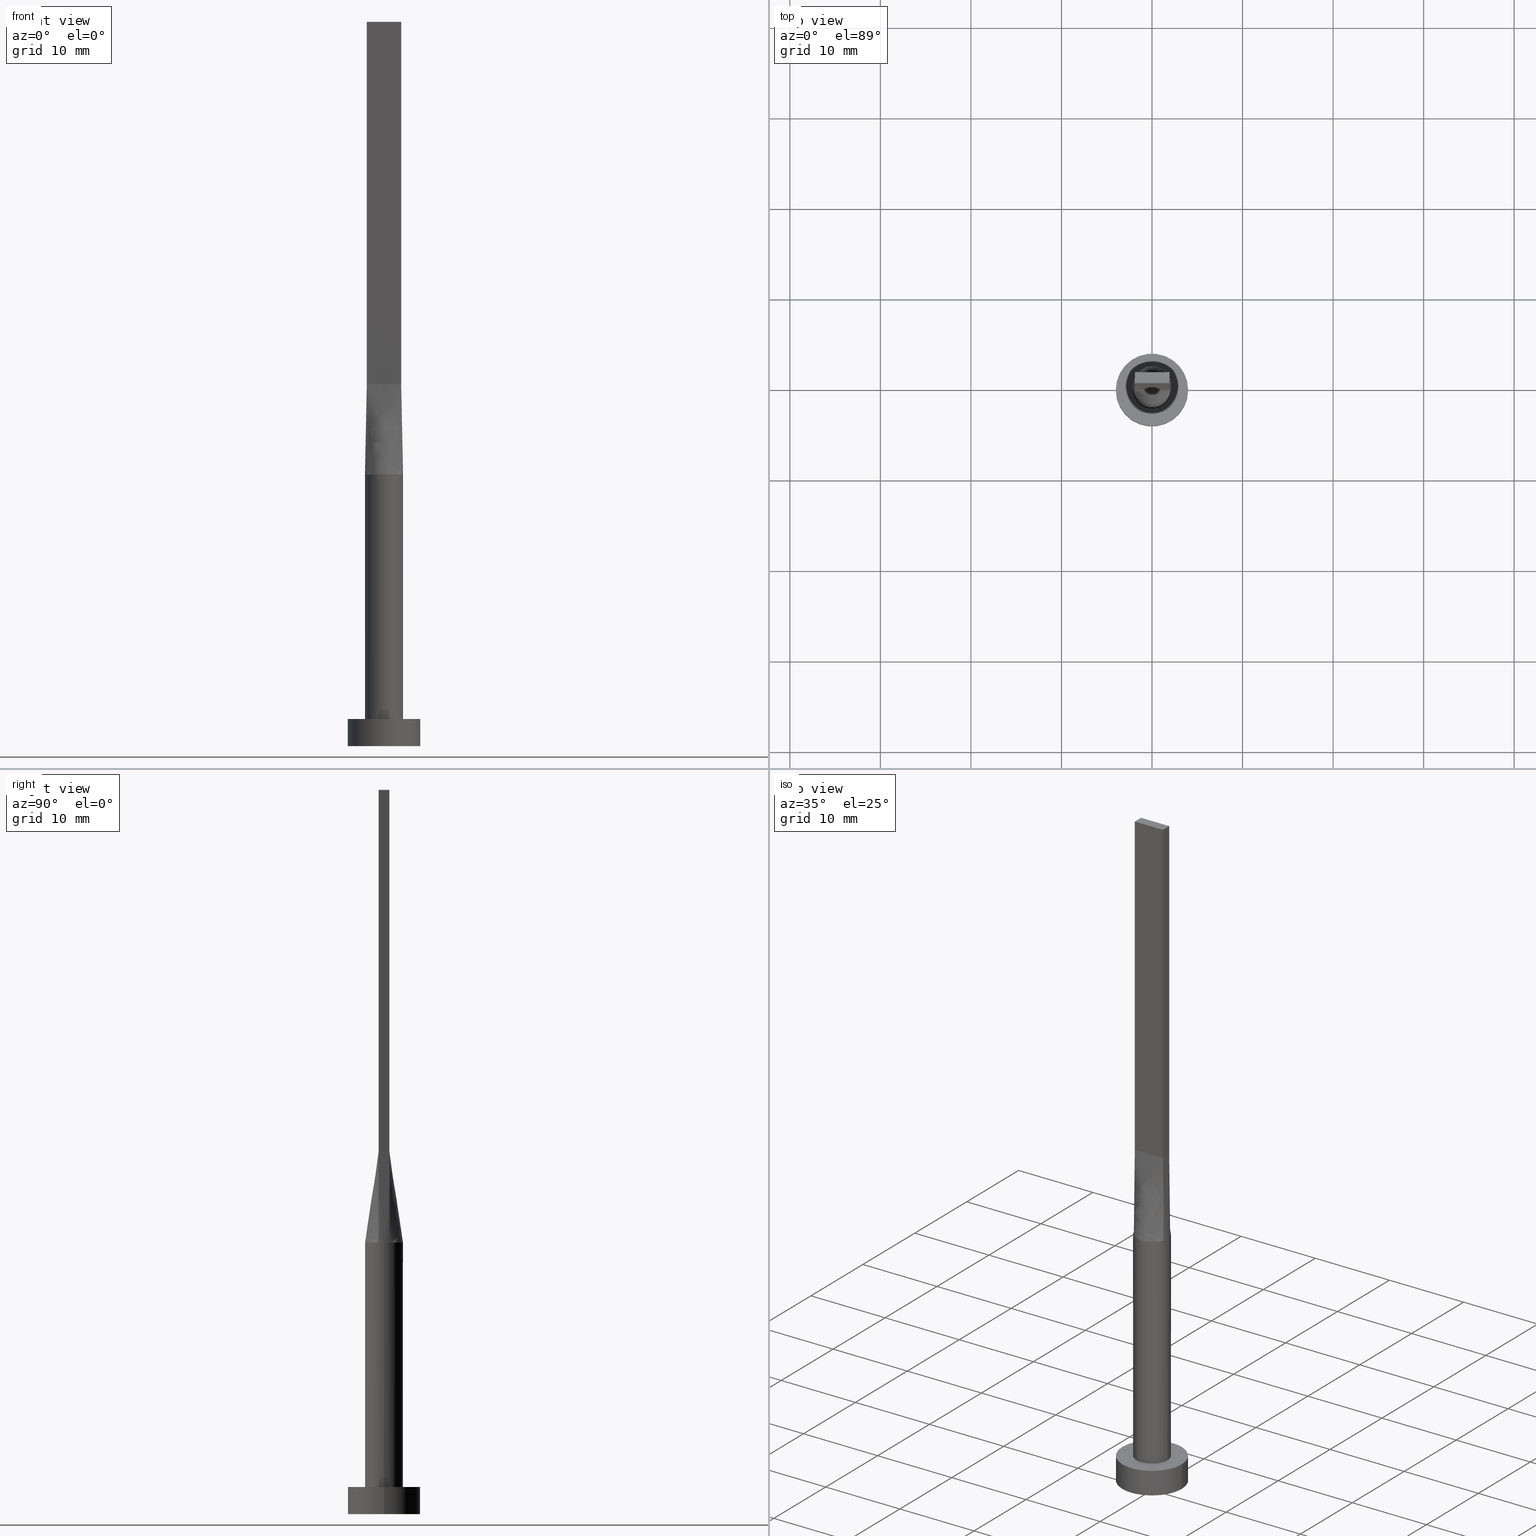
[diagram: canonical four-view strip — front | top / right | iso, engineering-drawing reading convention]
A machine part, canonical four-view strip (front | top / right | iso — engineering-drawing reading convention). The complete STEP part file that produces these views, byte-faithful:
ISO-10303-21;
HEADER;
FILE_DESCRIPTION (( 'STEP AP203' ),
    '1' );
FILE_NAME ('9bb8.STEP',
    '2023-02-13T11:24:46',
    ( '' ),
    ( '' ),
    'SwSTEP 2.0',
    'SolidWorks 2019',
    '' );
FILE_SCHEMA (( 'CONFIG_CONTROL_DESIGN' ));
ENDSEC;

DATA;
#1 = CARTESIAN_POINT ( 'NONE',  ( 1.951261798390848901, 0.6161879363339524129, 35.00000000000000000 ) ) ;
#2 = CARTESIAN_POINT ( 'NONE',  ( -1.741666666666666696, 0.6000000000000000888, 39.99999999999999289 ) ) ;
#3 = CARTESIAN_POINT ( 'NONE',  ( 0.000000000000000000, 0.000000000000000000, 30.00000000000000000 ) ) ;
#4 = AXIS2_PLACEMENT_3D ( 'NONE', #367, #493, #276 ) ;
#5 = CARTESIAN_POINT ( 'NONE',  ( 0.000000000000000000, 0.000000000000000000, 30.00000000000000000 ) ) ;
#6 = VERTEX_POINT ( 'NONE', #305 ) ;
#7 = CARTESIAN_POINT ( 'NONE',  ( -0.1583333333333370174, -0.5999999999999995337, 39.99999999999999289 ) ) ;
#8 = DIRECTION ( 'NONE',  ( -1.000000000000000000, 0.000000000000000000, 0.000000000000000000 ) ) ;
#9 = CYLINDRICAL_SURFACE ( 'NONE', #532, 2.100000000000000089 ) ;
#10 = ORIENTED_EDGE ( 'NONE', *, *, #257, .F. ) ;
#11 = PLANE ( 'NONE',  #62 ) ;
#12 = CARTESIAN_POINT ( 'NONE',  ( -1.899999999999999911, -0.5999999999999995337, 80.00000000000000000 ) ) ;
#13 = PLANE ( 'NONE',  #99 ) ;
#14 = FACE_OUTER_BOUND ( 'NONE', #278, .T. ) ;
#15 = VECTOR ( 'NONE', #430, 1000.000000000000000 ) ;
#16 = PERSON_AND_ORGANIZATION ( #572, #200 ) ;
#17 = DIRECTION ( 'NONE',  ( -0.000000000000000000, -0.000000000000000000, -1.000000000000000000 ) ) ;
#18 = DIRECTION ( 'NONE',  ( 1.807003620809174632E-16, 1.000000000000000000, 0.000000000000000000 ) ) ;
#19 = ORIENTED_EDGE ( 'NONE', *, *, #204, .T. ) ;
#20 = PERSON_AND_ORGANIZATION_ROLE ( 'design_owner' ) ;
#21 = EDGE_CURVE ( 'NONE', #109, #374, #120, .T. ) ;
#22 = CARTESIAN_POINT ( 'NONE',  ( -0.1583333333333350745, 0.6000000000000000888, 39.99999999999999289 ) ) ;
#23 = CARTESIAN_POINT ( 'NONE',  ( 2.100000000000000089, 2.571758278209441957E-16, 3.000000000000000000 ) ) ;
#24 = SHAPE_DEFINITION_REPRESENTATION ( #216, #262 ) ;
#25 = CARTESIAN_POINT ( 'NONE',  ( -1.667357759214464830, 1.291791096182927534, 30.00000000000000355 ) ) ;
#26 = CARTESIAN_POINT ( 'NONE',  ( 1.899999999999999023, -0.5999999999999997558, 40.00000000000000000 ) ) ;
#27 = DIRECTION ( 'NONE',  ( 1.000000000000000000, 0.000000000000000000, -0.000000000000000000 ) ) ;
#28 = EDGE_CURVE ( 'NONE', #198, #228, #481, .T. ) ;
#29 = CARTESIAN_POINT ( 'NONE',  ( 0.9765948449220478444, 1.875594675604967065, 29.99999999999999645 ) ) ;
#30 = DIRECTION ( 'NONE',  ( 0.000000000000000000, 0.000000000000000000, 1.000000000000000000 ) ) ;
#31 = CARTESIAN_POINT ( 'NONE',  ( 1.108333333333332504, 0.6000000000000000888, 39.99999999999999289 ) ) ;
#32 = AXIS2_PLACEMENT_3D ( 'NONE', #410, #280, #337 ) ;
#33 = CARTESIAN_POINT ( 'NONE',  ( 1.899999999999999689, 0.6000000000000001998, 40.00000000000000000 ) ) ;
#34 = VERTEX_POINT ( 'NONE', #210 ) ;
#35 = CARTESIAN_POINT ( 'NONE',  ( 1.266666666666665941, 0.6000000000000000888, 39.99999999999999289 ) ) ;
#36 = ORIENTED_EDGE ( 'NONE', *, *, #405, .F. ) ;
#37 = ADVANCED_FACE ( 'NONE', ( #38 ), #348, .F. ) ;
#38 = FACE_OUTER_BOUND ( 'NONE', #502, .T. ) ;
#39 = CIRCLE ( 'NONE', #397, 4.000000000000000000 ) ;
#40 = LOCAL_TIME ( 12, 24, 46.00000000000000000, #370 ) ;
#41 = CARTESIAN_POINT ( 'NONE',  ( 2.099999999999999645, -0.2158003972066312171, 29.99999999999999289 ) ) ;
#42 = DIRECTION ( 'NONE',  ( 1.000000000000000000, 0.000000000000000000, 0.000000000000000000 ) ) ;
#43 = CARTESIAN_POINT ( 'NONE',  ( 0.000000000000000000, 0.000000000000000000, 3.000000000000000000 ) ) ;
#44 = ORIENTED_EDGE ( 'NONE', *, *, #83, .T. ) ;
#45 = ADVANCED_FACE ( 'NONE', ( #536, #255 ), #387, .T. ) ;
#46 = CARTESIAN_POINT ( 'NONE',  ( 1.878511276496548366, -0.9591670956957810690, 30.00000000000001066 ) ) ;
#47 = CARTESIAN_POINT ( 'NONE',  ( 0.000000000000000000, 0.000000000000000000, 30.00000000000000000 ) ) ;
#48 = CARTESIAN_POINT ( 'NONE',  ( 2.002626276893244128, -0.6324088233005202841, 30.00000000000000000 ) ) ;
#49 = VERTEX_POINT ( 'NONE', #118 ) ;
#50 = CC_DESIGN_DATE_AND_TIME_ASSIGNMENT ( #450, #524, ( #385 ) ) ;
#51 = CARTESIAN_POINT ( 'NONE',  ( -4.000000000000000000, 0.000000000000000000, 3.000000000000000000 ) ) ;
#52 = CIRCLE ( 'NONE', #375, 4.000000000000000000 ) ;
#53 = ORIENTED_EDGE ( 'NONE', *, *, #359, .T. ) ;
#54 = EDGE_CURVE ( 'NONE', #188, #34, #209, .T. ) ;
#55 = CARTESIAN_POINT ( 'NONE',  ( 1.899999999999999689, 0.6000000000000001998, 40.00000000000000000 ) ) ;
#56 = ORIENTED_EDGE ( 'NONE', *, *, #184, .F. ) ;
#57 = DIRECTION ( 'NONE',  ( -1.807003620809174632E-16, -1.000000000000000000, 0.000000000000000000 ) ) ;
#58 = FACE_OUTER_BOUND ( 'NONE', #136, .T. ) ;
#59 = APPROVAL ( #233, 'NEUR�EN�' ) ;
#60 = ORIENTED_EDGE ( 'NONE', *, *, #267, .T. ) ;
#61 = APPROVAL_DATE_TIME ( #402, #59 ) ;
#62 = AXIS2_PLACEMENT_3D ( 'NONE', #97, #506, #369 ) ;
#63 = CARTESIAN_POINT ( 'NONE',  ( -1.951261798390848901, 0.6161879363339521909, 35.00000000000000000 ) ) ;
#64 = VERTEX_POINT ( 'NONE', #48 ) ;
#65 =( LENGTH_UNIT ( ) NAMED_UNIT ( * ) SI_UNIT ( .MILLI., .METRE. ) );
#66 = EDGE_CURVE ( 'NONE', #215, #109, #365, .T. ) ;
#67 = CARTESIAN_POINT ( 'NONE',  ( -2.100000000000000089, -0.2158003972066306064, 30.00000000000000000 ) ) ;
#68 = ORIENTED_EDGE ( 'NONE', *, *, #193, .F. ) ;
#69 = APPROVAL_ROLE ( '' ) ;
#70 = LINE ( 'NONE', #250, #444 ) ;
#71 = VECTOR ( 'NONE', #544, 1000.000000000000000 ) ;
#72 = VECTOR ( 'NONE', #146, 1000.000000000000000 ) ;
#73 = COORDINATED_UNIVERSAL_TIME_OFFSET ( 1, 0, .AHEAD. ) ;
#74 = CARTESIAN_POINT ( 'NONE',  ( -1.529462611013499451, 1.456669187245239527, 29.99999999999999645 ) ) ;
#75 = ADVANCED_FACE ( 'NONE', ( #332 ), #9, .T. ) ;
#76 = APPROVAL_STATUS ( 'not_yet_approved' ) ;
#77 = CARTESIAN_POINT ( 'NONE',  ( 1.529462611013499451, 1.456669187245239527, 29.99999999999999645 ) ) ;
#78 = CARTESIAN_POINT ( 'NONE',  ( -2.002622288503867587, 0.6324075186587619912, 30.00000000000000000 ) ) ;
#79 = DATE_AND_TIME ( #112, #123 ) ;
#80 = CARTESIAN_POINT ( 'NONE',  ( -1.899999999999999911, -0.5999999999999995337, 40.00000000000000000 ) ) ;
#81 = CLOSED_SHELL ( 'NONE', ( #75, #436, #196, #45, #526, #321, #454, #121, #152, #447, #381, #496, #341, #37, #139 ) ) ;
#82 = ORIENTED_EDGE ( 'NONE', *, *, #504, .F. ) ;
#83 = EDGE_CURVE ( 'NONE', #64, #271, #565, .T. ) ;
#84 = CARTESIAN_POINT ( 'NONE',  ( -2.100000000000000089, 0.000000000000000000, 30.00000000000000000 ) ) ;
#85 = CARTESIAN_POINT ( 'NONE',  ( -1.952271707612931895, -0.7915068550356626487, 30.00000000000000000 ) ) ;
#86 = CARTESIAN_POINT ( 'NONE',  ( -1.899999999999999689, 0.6000000000000001998, 80.00000000000000000 ) ) ;
#87 = AXIS2_PLACEMENT_3D ( 'NONE', #411, #17, #194 ) ;
#88 = CARTESIAN_POINT ( 'NONE',  ( 0.000000000000000000, 0.000000000000000000, 30.00000000000000000 ) ) ;
#89 = EDGE_CURVE ( 'NONE', #178, #326, #455, .T. ) ;
#90 = ORIENTED_EDGE ( 'NONE', *, *, #230, .T. ) ;
#91 = DIRECTION ( 'NONE',  ( -0.000000000000000000, -0.000000000000000000, -1.000000000000000000 ) ) ;
#92 = ORIENTED_EDGE ( 'NONE', *, *, #171, .F. ) ;
#93 = CARTESIAN_POINT ( 'NONE',  ( -2.002523596781697890, 0.6323758726679044040, 30.00000000000000000 ) ) ;
#94 = CARTESIAN_POINT ( 'NONE',  ( -0.5124799074986362557, 2.051574327850739454, 30.00000000000000711 ) ) ;
#95 = CARTESIAN_POINT ( 'NONE',  ( 1.899999999999999467, 0.2000000000000001499, 39.99999999999999289 ) ) ;
#96 = ORIENTED_EDGE ( 'NONE', *, *, #345, .T. ) ;
#97 = CARTESIAN_POINT ( 'NONE',  ( 0.000000000000000000, 0.000000000000000000, 0.000000000000000000 ) ) ;
#98 = FACE_OUTER_BOUND ( 'NONE', #154, .T. ) ;
#99 = AXIS2_PLACEMENT_3D ( 'NONE', #187, #408, #335 ) ;
#100 = CARTESIAN_POINT ( 'NONE',  ( -1.899999999999999689, 0.6000000000000001998, 80.00000000000000000 ) ) ;
#101 = EDGE_CURVE ( 'NONE', #491, #374, #498, .T. ) ;
#102 = CARTESIAN_POINT ( 'NONE',  ( 1.899999999999999689, 0.6000000000000001998, 40.00000000000000000 ) ) ;
#103 = CARTESIAN_POINT ( 'NONE',  ( -2.099999999999999645, 0.2158003972066311338, 29.99999999999999289 ) ) ;
#104 = EDGE_LOOP ( 'NONE', ( #380, #245, #423, #53 ) ) ;
#105 = CARTESIAN_POINT ( 'NONE',  ( 0.000000000000000000, 0.000000000000000000, 0.000000000000000000 ) ) ;
#106 = CARTESIAN_POINT ( 'NONE',  ( -1.899999999999999689, -0.2000000000000034250, 39.99999999999999289 ) ) ;
#107 = CALENDAR_DATE ( 2023, 13, 2 ) ;
#108 = VECTOR ( 'NONE', #8, 1000.000000000000000 ) ;
#109 = VERTEX_POINT ( 'NONE', #448 ) ;
#110 = EDGE_LOOP ( 'NONE', ( #273, #60, #263, #449 ) ) ;
#111 = APPROVAL ( #570, 'NEUR�EN�' ) ;
#112 = CALENDAR_DATE ( 2023, 13, 2 ) ;
#113 = CARTESIAN_POINT ( 'NONE',  ( -1.899999999999999911, -0.5999999999999995337, 80.00000000000000000 ) ) ;
#114 = CARTESIAN_POINT ( 'NONE',  ( 1.952271707612931895, 0.7915068550356627597, 30.00000000000000355 ) ) ;
#115 = CARTESIAN_POINT ( 'NONE',  ( 1.899999999999999689, 0.6000000000000001998, 40.00000000000000000 ) ) ;
#116 = APPLICATION_CONTEXT ( 'configuration controlled 3d designs of mechanical parts and assemblies' ) ;
#117 = ORIENTED_EDGE ( 'NONE', *, *, #101, .T. ) ;
#118 = CARTESIAN_POINT ( 'NONE',  ( -4.000000000000000000, 0.000000000000000000, 3.000000000000000000 ) ) ;
#119 = LINE ( 'NONE', #84, #338 ) ;
#120 = LINE ( 'NONE', #485, #299 ) ;
#121 = ADVANCED_FACE ( 'NONE', ( #177 ), #471, .T. ) ;
#122 = CIRCLE ( 'NONE', #467, 2.100000000000000089 ) ;
#123 = LOCAL_TIME ( 12, 24, 46.00000000000000000, #73 ) ;
#124 = ORIENTED_EDGE ( 'NONE', *, *, #237, .T. ) ;
#125 = CARTESIAN_POINT ( 'NONE',  ( -0.6333333333333361903, -0.5999999999999994227, 39.99999999999999289 ) ) ;
#126 = DIRECTION ( 'NONE',  ( -0.000000000000000000, -0.000000000000000000, -1.000000000000000000 ) ) ;
#127 = CARTESIAN_POINT ( 'NONE',  ( 0.7916666666666634100, -0.5999999999999996447, 39.99999999999999289 ) ) ;
#128 = EDGE_CURVE ( 'NONE', #326, #178, #122, .T. ) ;
#129 = CARTESIAN_POINT ( 'NONE',  ( 1.184262492297964098, 1.748903470433445628, 29.99999999999999289 ) ) ;
#130 = ORIENTED_EDGE ( 'NONE', *, *, #552, .F. ) ;
#131 = VECTOR ( 'NONE', #235, 1000.000000000000000 ) ;
#132 = ORIENTED_EDGE ( 'NONE', *, *, #311, .F. ) ;
#133 = CARTESIAN_POINT ( 'NONE',  ( -1.108333333333335169, -0.5999999999999994227, 39.99999999999999289 ) ) ;
#134 = CARTESIAN_POINT ( 'NONE',  ( -1.184262492297963876, 1.748903470433446294, 30.00000000000000000 ) ) ;
#135 = DIRECTION ( 'NONE',  ( 0.000000000000000000, 0.000000000000000000, 1.000000000000000000 ) ) ;
#136 = EDGE_LOOP ( 'NONE', ( #527, #354, #368, #442 ) ) ;
#137 = CARTESIAN_POINT ( 'NONE',  ( -1.899999999999999689, 0.6000000000000001998, 80.00000000000000000 ) ) ;
#138 = ORIENTED_EDGE ( 'NONE', *, *, #218, .F. ) ;
#139 = ADVANCED_FACE ( 'NONE', ( #361 ), #13, .T. ) ;
#140 = AXIS2_PLACEMENT_3D ( 'NONE', #88, #169, #324 ) ;
#141 = CARTESIAN_POINT ( 'NONE',  ( 2.002523596781697890, -0.6323758726679050701, 30.00000000000000000 ) ) ;
#142 = CARTESIAN_POINT ( 'NONE',  ( -1.899999999999999689, 0.6000000000000001998, 40.00000000000000000 ) ) ;
#143 = DIRECTION ( 'NONE',  ( 0.000000000000000000, 0.000000000000000000, 1.000000000000000000 ) ) ;
#144 = APPROVAL_ROLE ( '' ) ;
#145 = LINE ( 'NONE', #63, #249 ) ;
#146 = DIRECTION ( 'NONE',  ( -0.000000000000000000, -0.000000000000000000, -1.000000000000000000 ) ) ;
#147 = AXIS2_PLACEMENT_3D ( 'NONE', #478, #428, #562 ) ;
#148 = CARTESIAN_POINT ( 'NONE',  ( -2.002523596781697890, 0.6323758726679048481, 30.00000000000000000 ) ) ;
#149 = LOCAL_TIME ( 12, 24, 46.00000000000000000, #501 ) ;
#150 = ORIENTED_EDGE ( 'NONE', *, *, #128, .T. ) ;
#151 = DIRECTION ( 'NONE',  ( -1.807003620809174632E-16, -1.000000000000000000, 0.000000000000000000 ) ) ;
#152 = ADVANCED_FACE ( 'NONE', ( #197 ), #297, .T. ) ;
#153 = CARTESIAN_POINT ( 'NONE',  ( -2.065999667310664645, 0.4313683159928417554, 29.99999999999999645 ) ) ;
#154 = EDGE_LOOP ( 'NONE', ( #384, #285, #523, #519, #541, #150 ) ) ;
#155 = CALENDAR_DATE ( 2023, 13, 2 ) ;
#156 = CC_DESIGN_PERSON_AND_ORGANIZATION_ASSIGNMENT ( #446, #20, ( #264 ) ) ;
#157 = CARTESIAN_POINT ( 'NONE',  ( -1.878511276496549032, 0.9591670956957809580, 30.00000000000001066 ) ) ;
#158 = CARTESIAN_POINT ( 'NONE',  ( 1.667357759214464608, 1.291791096182927090, 30.00000000000001066 ) ) ;
#159 = EDGE_LOOP ( 'NONE', ( #44, #166, #117, #138, #463 ) ) ;
#160 = PERSON_AND_ORGANIZATION_ROLE ( 'classification_officer' ) ;
#161 = ORIENTED_EDGE ( 'NONE', *, *, #21, .F. ) ;
#162 = PERSON_AND_ORGANIZATION ( #572, #200 ) ;
#163 = CARTESIAN_POINT ( 'NONE',  ( 0.6333333333333320825, 0.6000000000000000888, 39.99999999999999289 ) ) ;
#164 = DIRECTION ( 'NONE',  ( -1.807003620809174139E-16, 1.000000000000000000, -0.000000000000000000 ) ) ;
#165 = EDGE_CURVE ( 'NONE', #394, #215, #294, .T. ) ;
#166 = ORIENTED_EDGE ( 'NONE', *, *, #193, .T. ) ;
#167 = DATE_TIME_ROLE ( 'classification_date' ) ;
#168 = FACE_OUTER_BOUND ( 'NONE', #363, .T. ) ;
#169 = DIRECTION ( 'NONE',  ( 0.000000000000000000, 0.000000000000000000, 1.000000000000000000 ) ) ;
#170 = DIRECTION ( 'NONE',  ( -5.421010862427522170E-16, -1.000000000000000000, 0.000000000000000000 ) ) ;
#171 = EDGE_CURVE ( 'NONE', #374, #328, #70, .T. ) ;
#172 = CARTESIAN_POINT ( 'NONE',  ( 0.6333333333333299731, -0.5999999999999996447, 39.99999999999999289 ) ) ;
#173 = CARTESIAN_POINT ( 'NONE',  ( 2.100000000000000089, 3.372022381799045987E-17, 30.00000000000000000 ) ) ;
#174 = DIRECTION ( 'NONE',  ( -0.000000000000000000, -0.000000000000000000, -1.000000000000000000 ) ) ;
#175 = ORIENTED_EDGE ( 'NONE', *, *, #274, .F. ) ;
#176 = CARTESIAN_POINT ( 'NONE',  ( 1.266666666666664165, -0.5999999999999996447, 39.99999999999999289 ) ) ;
#177 = FACE_OUTER_BOUND ( 'NONE', #159, .T. ) ;
#178 = VERTEX_POINT ( 'NONE', #23 ) ;
#179 = AXIS2_PLACEMENT_3D ( 'NONE', #240, #339, #189 ) ;
#180 = CARTESIAN_POINT ( 'NONE',  ( -1.266666666666668162, -0.5999999999999994227, 39.99999999999999289 ) ) ;
#181 = PLANE ( 'NONE',  #4 ) ;
#182 = ORIENTED_EDGE ( 'NONE', *, *, #427, .T. ) ;
#183 = LINE ( 'NONE', #137, #549 ) ;
#184 = EDGE_CURVE ( 'NONE', #198, #34, #203, .T. ) ;
#185 = EDGE_LOOP ( 'NONE', ( #132, #36, #225, #322 ) ) ;
#186 = CARTESIAN_POINT ( 'NONE',  ( -4.000000000000000000, 0.000000000000000000, 0.000000000000000000 ) ) ;
#187 = CARTESIAN_POINT ( 'NONE',  ( 0.000000000000000000, 0.000000000000000000, 80.00000000000000000 ) ) ;
#188 = VERTEX_POINT ( 'NONE', #560 ) ;
#189 = DIRECTION ( 'NONE',  ( 0.000000000000000000, -0.000000000000000000, -1.000000000000000000 ) ) ;
#190 = AXIS2_PLACEMENT_3D ( 'NONE', #5, #135, #393 ) ;
#191 = VERTEX_POINT ( 'NONE', #236 ) ;
#192 = DIRECTION ( 'NONE',  ( 1.000000000000000000, -1.807003620809174632E-16, 0.000000000000000000 ) ) ;
#193 = EDGE_CURVE ( 'NONE', #271, #491, #317, .T. ) ;
#194 = DIRECTION ( 'NONE',  ( -1.000000000000000000, 0.000000000000000000, 0.000000000000000000 ) ) ;
#195 = CARTESIAN_POINT ( 'NONE',  ( 1.952271707612932339, -0.7915068550356634258, 30.00000000000000000 ) ) ;
#196 = ADVANCED_FACE ( 'NONE', ( #287 ), #244, .T. ) ;
#197 = FACE_OUTER_BOUND ( 'NONE', #346, .T. ) ;
#198 = VERTEX_POINT ( 'NONE', #372 ) ;
#199 = FACE_OUTER_BOUND ( 'NONE', #350, .T. ) ;
#200 = ORGANIZATION ( 'NEUR�EN�', 'NEUR�EN�', '' ) ;
#201 = CARTESIAN_POINT ( 'NONE',  ( -0.5124799074986362557, 2.051574327850739454, 30.00000000000000711 ) ) ;
#202 = B_SPLINE_SURFACE_WITH_KNOTS ( 'NONE', 3, 1, ( 
 ( #312, #265 ),
 ( #85, #323 ),
 ( #389, #431 ),
 ( #358, #180 ),
 ( #220, #133 ),
 ( #534, #399 ),
 ( #492, #125 ),
 ( #223, #433 ),
 ( #486, #7 ),
 ( #275, #314 ),
 ( #391, #578 ),
 ( #392, #172 ),
 ( #355, #127 ),
 ( #443, #581 ),
 ( #440, #176 ),
 ( #46, #226 ),
 ( #195, #459 ),
 ( #406, #510 ) ),
 .UNSPECIFIED., .F., .F., .F.,
 ( 4, 2, 2, 2, 2, 2, 2, 2, 4 ),
 ( 2, 2 ),
 ( 0.000000000000000000, 0.1250000000000000833, 0.2500000000000001110, 0.3750000000000001110, 0.5000000000000001110, 0.6250000000000001110, 0.7500000000000000000, 0.8750000000000000000, 1.000000000000000000 ),
 ( 0.000000000000000000, 1.000000000000000000 ),
 .UNSPECIFIED. ) ;
#203 = LINE ( 'NONE', #457, #499 ) ;
#204 = EDGE_CURVE ( 'NONE', #214, #328, #145, .T. ) ;
#205 = CARTESIAN_POINT ( 'NONE',  ( -1.266666666666667496, 0.6000000000000000888, 39.99999999999999289 ) ) ;
#206 = DIRECTION ( 'NONE',  ( 0.000000000000000000, 0.000000000000000000, 1.000000000000000000 ) ) ;
#207 = COORDINATED_UNIVERSAL_TIME_OFFSET ( 1, 0, .AHEAD. ) ;
#208 = LINE ( 'NONE', #383, #416 ) ;
#209 = CIRCLE ( 'NONE', #241, 2.100000000000000089 ) ;
#210 = CARTESIAN_POINT ( 'NONE',  ( -2.002601997802567535, -0.6324010168594718095, 30.00000000000000000 ) ) ;
#211 = AXIS2_PLACEMENT_3D ( 'NONE', #327, #579, #548 ) ;
#212 = SECURITY_CLASSIFICATION ( '', '', #470 ) ;
#213 = PERSON_AND_ORGANIZATION ( #572, #200 ) ;
#214 = VERTEX_POINT ( 'NONE', #78 ) ;
#215 = VERTEX_POINT ( 'NONE', #344 ) ;
#216 = PRODUCT_DEFINITION_SHAPE ( 'NONE', 'NONE',  #385 ) ;
#217 = ORIENTED_EDGE ( 'NONE', *, *, #54, .T. ) ;
#218 = EDGE_CURVE ( 'NONE', #228, #374, #422, .T. ) ;
#219 = VECTOR ( 'NONE', #91, 1000.000000000000000 ) ;
#220 = CARTESIAN_POINT ( 'NONE',  ( -1.529462611013499229, -1.456669187245239749, 29.99999999999999289 ) ) ;
#221 = LINE ( 'NONE', #86, #71 ) ;
#222 = CARTESIAN_POINT ( 'NONE',  ( 1.899999999999999689, -0.1999999999999998168, 39.99999999999999289 ) ) ;
#223 = CARTESIAN_POINT ( 'NONE',  ( -0.5124799074986365888, -2.051574327850738566, 30.00000000000001066 ) ) ;
#224 = CARTESIAN_POINT ( 'NONE',  ( 0.000000000000000000, 0.000000000000000000, 30.00000000000000000 ) ) ;
#225 = ORIENTED_EDGE ( 'NONE', *, *, #274, .T. ) ;
#226 = CARTESIAN_POINT ( 'NONE',  ( 1.583333333333331483, -0.5999999999999996447, 39.99999999999999289 ) ) ;
#227 = CARTESIAN_POINT ( 'NONE',  ( -2.100000000000000089, 0.000000000000000000, 3.000000000000000000 ) ) ;
#228 = VERTEX_POINT ( 'NONE', #26 ) ;
#229 = AXIS2_PLACEMENT_3D ( 'NONE', #553, #143, #505 ) ;
#230 = EDGE_CURVE ( 'NONE', #191, #49, #329, .T. ) ;
#231 = LINE ( 'NONE', #484, #108 ) ;
#232 = CARTESIAN_POINT ( 'NONE',  ( 1.899999999999999023, -0.5999999999999997558, 80.00000000000000000 ) ) ;
#233 = APPROVAL_STATUS ( 'not_yet_approved' ) ;
#234 = CARTESIAN_POINT ( 'NONE',  ( 0.9765948449220478444, 1.875594675604967065, 29.99999999999999645 ) ) ;
#235 = DIRECTION ( 'NONE',  ( 5.421010862427522170E-16, 1.000000000000000000, 0.000000000000000000 ) ) ;
#236 = CARTESIAN_POINT ( 'NONE',  ( 4.000000000000000000, 4.898587196589412829E-16, 3.000000000000000000 ) ) ;
#237 = EDGE_CURVE ( 'NONE', #215, #228, #208, .T. ) ;
#238 = ORIENTED_EDGE ( 'NONE', *, *, #311, .T. ) ;
#239 = PERSON_AND_ORGANIZATION ( #572, #200 ) ;
#240 = CARTESIAN_POINT ( 'NONE',  ( 1.899999999999999689, 0.6000000000000001998, 80.00000000000000000 ) ) ;
#241 = AXIS2_PLACEMENT_3D ( 'NONE', #564, #206, #426 ) ;
#242 =( GEOMETRIC_REPRESENTATION_CONTEXT ( 3 ) GLOBAL_UNCERTAINTY_ASSIGNED_CONTEXT ( ( #494 ) ) GLOBAL_UNIT_ASSIGNED_CONTEXT ( ( #65, #554, #246 ) ) REPRESENTATION_CONTEXT ( 'NONE', 'WORKASPACE' ) );
#243 = CARTESIAN_POINT ( 'NONE',  ( -1.899999999999999911, -0.5999999999999995337, 40.00000000000000000 ) ) ;
#244 = CYLINDRICAL_SURFACE ( 'NONE', #87, 4.000000000000000000 ) ;
#245 = ORIENTED_EDGE ( 'NONE', *, *, #237, .F. ) ;
#246 =( NAMED_UNIT ( * ) SI_UNIT ( $, .STERADIAN. ) SOLID_ANGLE_UNIT ( ) );
#247 = CARTESIAN_POINT ( 'NONE',  ( -2.065999667310664645, -0.4313683159928413113, 30.00000000000000000 ) ) ;
#248 = APPROVAL_DATE_TIME ( #79, #458 ) ;
#249 = VECTOR ( 'NONE', #414, 1000.000000000000114 ) ;
#250 = CARTESIAN_POINT ( 'NONE',  ( -1.899999999999999689, 0.6000000000000001998, 40.00000000000000000 ) ) ;
#251 = CC_DESIGN_SECURITY_CLASSIFICATION ( #212, ( #340 ) ) ;
#252 = PERSON_AND_ORGANIZATION ( #572, #200 ) ;
#253 = CARTESIAN_POINT ( 'NONE',  ( 0.7916666666666655194, 0.6000000000000000888, 39.99999999999999289 ) ) ;
#254 = CARTESIAN_POINT ( 'NONE',  ( 1.952271707612931895, 0.7915068550356627597, 30.00000000000000355 ) ) ;
#255 = FACE_OUTER_BOUND ( 'NONE', #432, .T. ) ;
#256 = PERSON_AND_ORGANIZATION ( #572, #200 ) ;
#257 = EDGE_CURVE ( 'NONE', #491, #214, #462, .T. ) ;
#258 = CARTESIAN_POINT ( 'NONE',  ( -1.899999999999999689, 0.6000000000000001998, 80.00000000000000000 ) ) ;
#259 = VECTOR ( 'NONE', #325, 1000.000000000000114 ) ;
#260 = DIRECTION ( 'NONE',  ( -1.000000000000000000, 5.421010862427522170E-16, 0.000000000000000000 ) ) ;
#261 = CC_DESIGN_PERSON_AND_ORGANIZATION_ASSIGNMENT ( #252, #160, ( #212 ) ) ;
#262 = ADVANCED_BREP_SHAPE_REPRESENTATION ( '9bb8', ( #429, #437 ), #242 ) ;
#263 = ORIENTED_EDGE ( 'NONE', *, *, #28, .F. ) ;
#264 = PRODUCT ( '9bb8', '9bb8', '', ( #453 ) ) ;
#265 = CARTESIAN_POINT ( 'NONE',  ( -1.899999999999999911, -0.5999999999999995337, 40.00000000000000000 ) ) ;
#266 = CARTESIAN_POINT ( 'NONE',  ( -1.667357759214464830, 1.291791096182927534, 30.00000000000000355 ) ) ;
#267 = EDGE_CURVE ( 'NONE', #64, #228, #315, .T. ) ;
#268 = CIRCLE ( 'NONE', #32, 4.000000000000000000 ) ;
#269 = LINE ( 'NONE', #535, #219 ) ;
#270 = CARTESIAN_POINT ( 'NONE',  ( 1.899999999999999689, -0.3999999999999997446, 39.99999999999999289 ) ) ;
#271 = VERTEX_POINT ( 'NONE', #173 ) ;
#272 = CYLINDRICAL_SURFACE ( 'NONE', #409, 2.100000000000000089 ) ;
#273 = ORIENTED_EDGE ( 'NONE', *, *, #330, .T. ) ;
#274 = EDGE_CURVE ( 'NONE', #49, #530, #490, .T. ) ;
#275 = CARTESIAN_POINT ( 'NONE',  ( 0.2565105576742072735, -2.100000000000000533, 30.00000000000001066 ) ) ;
#276 = DIRECTION ( 'NONE',  ( -1.000000000000000000, 5.706327223607918787E-17, 0.000000000000000000 ) ) ;
#277 = CARTESIAN_POINT ( 'NONE',  ( 2.065999667310664645, 0.4313683159928415889, 30.00000000000000000 ) ) ;
#278 = EDGE_LOOP ( 'NONE', ( #388, #415, #543, #333 ) ) ;
#279 = VECTOR ( 'NONE', #164, 1000.000000000000000 ) ;
#280 = DIRECTION ( 'NONE',  ( 0.000000000000000000, 0.000000000000000000, 1.000000000000000000 ) ) ;
#281 = DIRECTION ( 'NONE',  ( -0.01025176717979719640, 0.003237400162041168764, 0.9999422085850171449 ) ) ;
#282 = CARTESIAN_POINT ( 'NONE',  ( 2.002523596781697890, 0.6323758726679047371, 30.00000000000000000 ) ) ;
#283 = CALENDAR_DATE ( 2023, 13, 2 ) ;
#284 = EDGE_CURVE ( 'NONE', #445, #328, #221, .T. ) ;
#285 = ORIENTED_EDGE ( 'NONE', *, *, #83, .F. ) ;
#286 = APPLICATION_PROTOCOL_DEFINITION ( 'international standard', 'config_control_design', 1994, #116 ) ;
#287 = FACE_OUTER_BOUND ( 'NONE', #185, .T. ) ;
#288 = CC_DESIGN_PERSON_AND_ORGANIZATION_ASSIGNMENT ( #162, #528, ( #340 ) ) ;
#289 = ORIENTED_EDGE ( 'NONE', *, *, #89, .T. ) ;
#290 = PERSON_AND_ORGANIZATION_ROLE ( 'creator' ) ;
#291 = VECTOR ( 'NONE', #487, 1000.000000000000000 ) ;
#292 = CARTESIAN_POINT ( 'NONE',  ( -1.899999999999999911, -0.5999999999999995337, 80.00000000000000000 ) ) ;
#293 = LOCAL_TIME ( 12, 24, 46.00000000000000000, #207 ) ;
#294 = LINE ( 'NONE', #113, #435 ) ;
#295 = DIRECTION ( 'NONE',  ( 0.000000000000000000, 0.000000000000000000, 1.000000000000000000 ) ) ;
#296 = EDGE_CURVE ( 'NONE', #214, #188, #558, .T. ) ;
#297 = B_SPLINE_SURFACE_WITH_KNOTS ( 'NONE', 3, 1, ( 
 ( #148, #507 ),
 ( #153, #511 ),
 ( #103, #377 ),
 ( #67, #106 ),
 ( #247, #555 ),
 ( #513, #243 ) ),
 .UNSPECIFIED., .F., .F., .F.,
 ( 4, 2, 4 ),
 ( 2, 2 ),
 ( 0.000000000000000000, 0.5000000000000000000, 1.000000000000000000 ),
 ( 0.000000000000000000, 1.000000000000000000 ),
 .UNSPECIFIED. ) ;
#298 = CARTESIAN_POINT ( 'NONE',  ( -1.184262492297963876, 1.748903470433446294, 30.00000000000000000 ) ) ;
#299 = VECTOR ( 'NONE', #307, 1000.000000000000000 ) ;
#300 = CARTESIAN_POINT ( 'NONE',  ( 2.002598039528881380, 0.6323997261616642884, 30.00000000000000000 ) ) ;
#301 = CARTESIAN_POINT ( 'NONE',  ( 1.667357759214464608, 1.291791096182927090, 30.00000000000001066 ) ) ;
#302 = CARTESIAN_POINT ( 'NONE',  ( 0.000000000000000000, 0.000000000000000000, 3.000000000000000000 ) ) ;
#303 = APPROVAL_ROLE ( '' ) ;
#304 = CARTESIAN_POINT ( 'NONE',  ( 0.000000000000000000, 0.000000000000000000, 0.000000000000000000 ) ) ;
#305 = CARTESIAN_POINT ( 'NONE',  ( 4.000000000000000000, 4.898587196589412829E-16, 0.000000000000000000 ) ) ;
#306 = DIRECTION ( 'NONE',  ( 1.000000000000000000, 0.000000000000000000, 0.000000000000000000 ) ) ;
#307 = DIRECTION ( 'NONE',  ( -0.000000000000000000, -0.000000000000000000, -1.000000000000000000 ) ) ;
#308 = VECTOR ( 'NONE', #57, 1000.000000000000000 ) ;
#309 = CARTESIAN_POINT ( 'NONE',  ( 0.2565105576742081062, 2.100000000000000533, 30.00000000000001421 ) ) ;
#310 = ORIENTED_EDGE ( 'NONE', *, *, #128, .F. ) ;
#311 = EDGE_CURVE ( 'NONE', #191, #6, #269, .T. ) ;
#312 = CARTESIAN_POINT ( 'NONE',  ( -2.002523596781697890, -0.6323758726679042930, 30.00000000000000000 ) ) ;
#313 = DIRECTION ( 'NONE',  ( 0.000000000000000000, 0.000000000000000000, 1.000000000000000000 ) ) ;
#314 = CARTESIAN_POINT ( 'NONE',  ( 0.1583333333333295512, -0.5999999999999995337, 39.99999999999999289 ) ) ;
#315 = LINE ( 'NONE', #319, #520 ) ;
#316 = CARTESIAN_POINT ( 'NONE',  ( 1.899999999999999911, -0.5999999999999997558, 40.00000000000000000 ) ) ;
#317 = CIRCLE ( 'NONE', #229, 2.100000000000000089 ) ;
#318 = CARTESIAN_POINT ( 'NONE',  ( -1.952271707612931895, 0.7915068550356629817, 30.00000000000000355 ) ) ;
#319 = CARTESIAN_POINT ( 'NONE',  ( 1.951261798390848901, -0.6161879363339519688, 35.00000000000000000 ) ) ;
#320 = DIRECTION ( 'NONE',  ( 0.000000000000000000, 0.000000000000000000, 1.000000000000000000 ) ) ;
#321 = ADVANCED_FACE ( 'NONE', ( #98 ), #272, .T. ) ;
#322 = ORIENTED_EDGE ( 'NONE', *, *, #504, .T. ) ;
#323 = CARTESIAN_POINT ( 'NONE',  ( -1.741666666666666918, -0.5999999999999994227, 39.99999999999999289 ) ) ;
#324 = DIRECTION ( 'NONE',  ( 1.000000000000000000, 0.000000000000000000, 0.000000000000000000 ) ) ;
#325 = DIRECTION ( 'NONE',  ( -0.01025176717979708711, -0.003237400162041179606, 0.9999422085850171449 ) ) ;
#326 = VERTEX_POINT ( 'NONE', #227 ) ;
#327 = CARTESIAN_POINT ( 'NONE',  ( 0.000000000000000000, 0.000000000000000000, 3.000000000000000000 ) ) ;
#328 = VERTEX_POINT ( 'NONE', #395 ) ;
#329 = CIRCLE ( 'NONE', #540, 4.000000000000000000 ) ;
#330 = EDGE_CURVE ( 'NONE', #34, #64, #362, .T. ) ;
#331 = LINE ( 'NONE', #292, #425 ) ;
#332 = FACE_OUTER_BOUND ( 'NONE', #483, .T. ) ;
#333 = ORIENTED_EDGE ( 'NONE', *, *, #284, .T. ) ;
#334 = PLANE ( 'NONE',  #479 ) ;
#335 = DIRECTION ( 'NONE',  ( 1.000000000000000000, 0.000000000000000000, -0.000000000000000000 ) ) ;
#336 = ORIENTED_EDGE ( 'NONE', *, *, #351, .T. ) ;
#337 = DIRECTION ( 'NONE',  ( 1.000000000000000000, 0.000000000000000000, 0.000000000000000000 ) ) ;
#338 = VECTOR ( 'NONE', #386, 1000.000000000000000 ) ;
#339 = DIRECTION ( 'NONE',  ( 0.000000000000000000, -1.000000000000000000, 0.000000000000000000 ) ) ;
#340 = PRODUCT_DEFINITION_FORMATION_WITH_SPECIFIED_SOURCE ( 'LIBOVOLN�', '', #264, .NOT_KNOWN. ) ;
#341 = ADVANCED_FACE ( 'NONE', ( #364 ), #181, .F. ) ;
#342 = ORIENTED_EDGE ( 'NONE', *, *, #427, .F. ) ;
#343 = CARTESIAN_POINT ( 'NONE',  ( -0.9765948449220482885, 1.875594675604967509, 30.00000000000001066 ) ) ;
#344 = CARTESIAN_POINT ( 'NONE',  ( 1.899999999999999023, -0.5999999999999997558, 80.00000000000000000 ) ) ;
#345 = EDGE_CURVE ( 'NONE', #109, #445, #231, .T. ) ;
#346 = EDGE_LOOP ( 'NONE', ( #569, #217, #56, #130, #546 ) ) ;
#347 = DIRECTION ( 'NONE',  ( 0.000000000000000000, 0.000000000000000000, 1.000000000000000000 ) ) ;
#348 = PLANE ( 'NONE',  #488 ) ;
#349 = CARTESIAN_POINT ( 'NONE',  ( 1.184262492297964098, 1.748903470433445628, 29.99999999999999289 ) ) ;
#350 = EDGE_LOOP ( 'NONE', ( #82, #342 ) ) ;
#351 = EDGE_CURVE ( 'NONE', #445, #394, #183, .T. ) ;
#352 = CARTESIAN_POINT ( 'NONE',  ( -1.583333333333333703, 0.6000000000000000888, 39.99999999999999289 ) ) ;
#353 = CARTESIAN_POINT ( 'NONE',  ( -2.002622288503867587, 0.6324075186587619912, 30.00000000000000000 ) ) ;
#354 = ORIENTED_EDGE ( 'NONE', *, *, #284, .F. ) ;
#355 = CARTESIAN_POINT ( 'NONE',  ( 1.184262492297964320, -1.748903470433446961, 30.00000000000000711 ) ) ;
#356 = CARTESIAN_POINT ( 'NONE',  ( 2.100000000000000089, 0.2158003972066308285, 30.00000000000000000 ) ) ;
#357 = ORIENTED_EDGE ( 'NONE', *, *, #413, .F. ) ;
#358 = CARTESIAN_POINT ( 'NONE',  ( -1.667357759214464386, -1.291791096182926424, 30.00000000000001066 ) ) ;
#359 = EDGE_CURVE ( 'NONE', #394, #198, #331, .T. ) ;
#360 = CARTESIAN_POINT ( 'NONE',  ( 0.5124799074986362557, 2.051574327850739454, 30.00000000000001421 ) ) ;
#361 = FACE_OUTER_BOUND ( 'NONE', #398, .T. ) ;
#362 = CIRCLE ( 'NONE', #508, 2.100000000000000089 ) ;
#363 = EDGE_LOOP ( 'NONE', ( #561, #19, #92, #580 ) ) ;
#364 = FACE_OUTER_BOUND ( 'NONE', #104, .T. ) ;
#365 = LINE ( 'NONE', #232, #131 ) ;
#366 = ORIENTED_EDGE ( 'NONE', *, *, #165, .T. ) ;
#367 = CARTESIAN_POINT ( 'NONE',  ( -1.899999999999999911, -0.5999999999999995337, 80.00000000000000000 ) ) ;
#368 = ORIENTED_EDGE ( 'NONE', *, *, #345, .F. ) ;
#369 = DIRECTION ( 'NONE',  ( 1.000000000000000000, 0.000000000000000000, -0.000000000000000000 ) ) ;
#370 = COORDINATED_UNIVERSAL_TIME_OFFSET ( 1, 0, .AHEAD. ) ;
#371 = CARTESIAN_POINT ( 'NONE',  ( 0.000000000000000000, 0.000000000000000000, 3.000000000000000000 ) ) ;
#372 = CARTESIAN_POINT ( 'NONE',  ( -1.899999999999999911, -0.5999999999999995337, 40.00000000000000000 ) ) ;
#373 = CARTESIAN_POINT ( 'NONE',  ( 2.002598039528881380, 0.6323997261616642884, 30.00000000000000000 ) ) ;
#374 = VERTEX_POINT ( 'NONE', #102 ) ;
#375 = AXIS2_PLACEMENT_3D ( 'NONE', #371, #295, #460 ) ;
#376 = CC_DESIGN_APPROVAL ( #458, ( #212 ) ) ;
#377 = CARTESIAN_POINT ( 'NONE',  ( -1.899999999999999467, 0.1999999999999964584, 39.99999999999999289 ) ) ;
#378 = CARTESIAN_POINT ( 'NONE',  ( -0.3166666666666682062, 0.6000000000000000888, 39.99999999999999289 ) ) ;
#379 = DIRECTION ( 'NONE',  ( -0.01025176717979706630, -0.003237400162041201290, -0.9999422085850171449 ) ) ;
#380 = ORIENTED_EDGE ( 'NONE', *, *, #28, .T. ) ;
#381 = ADVANCED_FACE ( 'NONE', ( #58 ), #407, .F. ) ;
#382 = CARTESIAN_POINT ( 'NONE',  ( 0.3166666666666652086, 0.6000000000000000888, 39.99999999999999289 ) ) ;
#383 = CARTESIAN_POINT ( 'NONE',  ( 1.899999999999999023, -0.5999999999999997558, 80.00000000000000000 ) ) ;
#384 = ORIENTED_EDGE ( 'NONE', *, *, #516, .F. ) ;
#385 = PRODUCT_DEFINITION ( 'NEZN�M�', '', #340, #401 ) ;
#386 = DIRECTION ( 'NONE',  ( -0.000000000000000000, -0.000000000000000000, -1.000000000000000000 ) ) ;
#387 = PLANE ( 'NONE',  #575 ) ;
#388 = ORIENTED_EDGE ( 'NONE', *, *, #552, .T. ) ;
#389 = CARTESIAN_POINT ( 'NONE',  ( -1.878511276496548144, -0.9591670956957798477, 30.00000000000001066 ) ) ;
#390 = CARTESIAN_POINT ( 'NONE',  ( 1.899999999999999023, -0.5999999999999997558, 80.00000000000000000 ) ) ;
#391 = CARTESIAN_POINT ( 'NONE',  ( 0.5124799074986360337, -2.051574327850739454, 30.00000000000000711 ) ) ;
#392 = CARTESIAN_POINT ( 'NONE',  ( 0.9765948449220478444, -1.875594675604967954, 30.00000000000000711 ) ) ;
#393 = DIRECTION ( 'NONE',  ( 1.000000000000000000, -1.776356839400250465E-15, 0.000000000000000000 ) ) ;
#394 = VERTEX_POINT ( 'NONE', #12 ) ;
#395 = CARTESIAN_POINT ( 'NONE',  ( -1.899999999999999689, 0.6000000000000001998, 40.00000000000000000 ) ) ;
#396 = DIRECTION ( 'NONE',  ( -1.000000000000000000, 0.000000000000000000, 0.000000000000000000 ) ) ;
#397 = AXIS2_PLACEMENT_3D ( 'NONE', #304, #347, #306 ) ;
#398 = EDGE_LOOP ( 'NONE', ( #96, #336, #366, #538 ) ) ;
#399 = CARTESIAN_POINT ( 'NONE',  ( -0.7916666666666692942, -0.5999999999999994227, 39.99999999999999289 ) ) ;
#400 = CARTESIAN_POINT ( 'NONE',  ( 1.529462611013499451, 1.456669187245239527, 29.99999999999999645 ) ) ;
#401 = DESIGN_CONTEXT ( 'detailed design', #461, 'design' ) ;
#402 = DATE_AND_TIME ( #107, #40 ) ;
#403 = CARTESIAN_POINT ( 'NONE',  ( -1.878511276496549032, 0.9591670956957809580, 30.00000000000001066 ) ) ;
#404 = DIRECTION ( 'NONE',  ( 1.000000000000000000, 0.000000000000000000, 0.000000000000000000 ) ) ;
#405 = EDGE_CURVE ( 'NONE', #49, #191, #52, .T. ) ;
#406 = CARTESIAN_POINT ( 'NONE',  ( 2.002523596781698334, -0.6323758726679041819, 30.00000000000000000 ) ) ;
#407 = PLANE ( 'NONE',  #179 ) ;
#408 = DIRECTION ( 'NONE',  ( 0.000000000000000000, 0.000000000000000000, 1.000000000000000000 ) ) ;
#409 = AXIS2_PLACEMENT_3D ( 'NONE', #47, #126, #438 ) ;
#410 = CARTESIAN_POINT ( 'NONE',  ( 0.000000000000000000, 0.000000000000000000, 0.000000000000000000 ) ) ;
#411 = CARTESIAN_POINT ( 'NONE',  ( 0.000000000000000000, 0.000000000000000000, 3.000000000000000000 ) ) ;
#412 = APPLICATION_PROTOCOL_DEFINITION ( 'international standard', 'config_control_design', 1994, #461 ) ;
#413 = EDGE_CURVE ( 'NONE', #188, #326, #119, .T. ) ;
#414 = DIRECTION ( 'NONE',  ( 0.01025176717979708711, -0.003237400162041147514, 0.9999422085850171449 ) ) ;
#415 = ORIENTED_EDGE ( 'NONE', *, *, #359, .F. ) ;
#416 = VECTOR ( 'NONE', #469, 1000.000000000000000 ) ;
#417 = CARTESIAN_POINT ( 'NONE',  ( -0.2565105576742073845, 2.100000000000000533, 30.00000000000001066 ) ) ;
#418 = DIRECTION ( 'NONE',  ( -1.000000000000000000, -0.000000000000000000, -0.000000000000000000 ) ) ;
#419 = CARTESIAN_POINT ( 'NONE',  ( -1.108333333333334281, 0.6000000000000000888, 39.99999999999999289 ) ) ;
#420 = CARTESIAN_POINT ( 'NONE',  ( 0.000000000000000000, 0.000000000000000000, 3.000000000000000000 ) ) ;
#421 = FACE_OUTER_BOUND ( 'NONE', #514, .T. ) ;
#422 = LINE ( 'NONE', #33, #279 ) ;
#423 = ORIENTED_EDGE ( 'NONE', *, *, #165, .F. ) ;
#424 = CARTESIAN_POINT ( 'NONE',  ( 1.583333333333332815, 0.6000000000000001998, 40.00000000000000000 ) ) ;
#425 = VECTOR ( 'NONE', #451, 1000.000000000000000 ) ;
#426 = DIRECTION ( 'NONE',  ( 1.000000000000000000, 0.000000000000000000, 0.000000000000000000 ) ) ;
#427 = EDGE_CURVE ( 'NONE', #6, #530, #39, .T. ) ;
#428 = DIRECTION ( 'NONE',  ( -0.000000000000000000, -0.000000000000000000, -1.000000000000000000 ) ) ;
#429 = MANIFOLD_SOLID_BREP ( 'P�idat vysunut�m5', #81 ) ;
#430 = DIRECTION ( 'NONE',  ( 1.000000000000000000, -5.706327223607918787E-17, 0.000000000000000000 ) ) ;
#431 = CARTESIAN_POINT ( 'NONE',  ( -1.583333333333333925, -0.5999999999999994227, 39.99999999999999289 ) ) ;
#432 = EDGE_LOOP ( 'NONE', ( #566, #90 ) ) ;
#433 = CARTESIAN_POINT ( 'NONE',  ( -0.3166666666666700380, -0.5999999999999994227, 39.99999999999999289 ) ) ;
#434 = CARTESIAN_POINT ( 'NONE',  ( 0.2565105576742081062, 2.100000000000000533, 30.00000000000001421 ) ) ;
#435 = VECTOR ( 'NONE', #465, 1000.000000000000000 ) ;
#436 = ADVANCED_FACE ( 'NONE', ( #421 ), #472, .T. ) ;
#437 = AXIS2_PLACEMENT_3D ( 'NONE', #105, #547, #559 ) ;
#438 = DIRECTION ( 'NONE',  ( -1.000000000000000000, 0.000000000000000000, 0.000000000000000000 ) ) ;
#439 = CC_DESIGN_PERSON_AND_ORGANIZATION_ASSIGNMENT ( #239, #290, ( #385 ) ) ;
#440 = CARTESIAN_POINT ( 'NONE',  ( 1.667357759214464830, -1.291791096182927534, 30.00000000000001066 ) ) ;
#441 = CARTESIAN_POINT ( 'NONE',  ( -0.2565105576742073845, 2.100000000000000533, 30.00000000000001066 ) ) ;
#442 = ORIENTED_EDGE ( 'NONE', *, *, #21, .T. ) ;
#443 = CARTESIAN_POINT ( 'NONE',  ( 1.529462611013499229, -1.456669187245239971, 30.00000000000000000 ) ) ;
#444 = VECTOR ( 'NONE', #418, 1000.000000000000000 ) ;
#445 = VERTEX_POINT ( 'NONE', #258 ) ;
#446 = PERSON_AND_ORGANIZATION ( #572, #200 ) ;
#447 = ADVANCED_FACE ( 'NONE', ( #168 ), #476, .T. ) ;
#448 = CARTESIAN_POINT ( 'NONE',  ( 1.899999999999999689, 0.6000000000000001998, 80.00000000000000000 ) ) ;
#449 = ORIENTED_EDGE ( 'NONE', *, *, #184, .T. ) ;
#450 = DATE_AND_TIME ( #283, #149 ) ;
#451 = DIRECTION ( 'NONE',  ( -0.000000000000000000, -0.000000000000000000, -1.000000000000000000 ) ) ;
#452 = ORIENTED_EDGE ( 'NONE', *, *, #89, .F. ) ;
#453 = MECHANICAL_CONTEXT ( 'NONE', #116, 'mechanical' ) ;
#454 = ADVANCED_FACE ( 'NONE', ( #574 ), #202, .T. ) ;
#455 = CIRCLE ( 'NONE', #211, 2.100000000000000089 ) ;
#456 = CC_DESIGN_APPROVAL ( #59, ( #385 ) ) ;
#457 = CARTESIAN_POINT ( 'NONE',  ( -1.951261798390848901, -0.6161879363339519688, 35.00000000000000000 ) ) ;
#458 = APPROVAL ( #76, 'NEUR�EN�' ) ;
#459 = CARTESIAN_POINT ( 'NONE',  ( 1.741666666666665142, -0.5999999999999996447, 39.99999999999999289 ) ) ;
#460 = DIRECTION ( 'NONE',  ( 1.000000000000000000, 0.000000000000000000, 0.000000000000000000 ) ) ;
#461 = APPLICATION_CONTEXT ( 'configuration controlled 3d designs of mechanical parts and assemblies' ) ;
#462 = B_SPLINE_CURVE_WITH_KNOTS ( 'NONE', 3,
 ( #300, #254, #563, #158, #400, #129, #234, #360, #434, #441, #94, #497, #134, #542, #266, #403, #539, #353 ),
 .UNSPECIFIED., .F., .F.,
 ( 4, 2, 2, 2, 2, 2, 2, 2, 4 ),
 ( 0.000000000000000000, 0.1249999999999999167, 0.2499999999999998890, 0.3749999999999998335, 0.4999999999999998890, 0.6249999999999998890, 0.7499999999999998890, 0.8750000000000000000, 1.000000000000000000 ),
 .UNSPECIFIED. ) ;
#463 = ORIENTED_EDGE ( 'NONE', *, *, #267, .F. ) ;
#464 = PERSON_AND_ORGANIZATION_ROLE ( 'design_supplier' ) ;
#465 = DIRECTION ( 'NONE',  ( 1.000000000000000000, -5.706327223607920020E-17, 0.000000000000000000 ) ) ;
#466 = DATE_AND_TIME ( #474, #293 ) ;
#467 = AXIS2_PLACEMENT_3D ( 'NONE', #43, #320, #404 ) ;
#468 = CARTESIAN_POINT ( 'NONE',  ( -0.7916666666666677399, 0.6000000000000000888, 39.99999999999999289 ) ) ;
#469 = DIRECTION ( 'NONE',  ( -0.000000000000000000, -0.000000000000000000, -1.000000000000000000 ) ) ;
#470 = SECURITY_CLASSIFICATION_LEVEL ( 'unclassified' ) ;
#471 = B_SPLINE_SURFACE_WITH_KNOTS ( 'NONE', 3, 1, ( 
 ( #141, #316 ),
 ( #545, #270 ),
 ( #41, #222 ),
 ( #356, #95 ),
 ( #277, #537 ),
 ( #282, #55 ) ),
 .UNSPECIFIED., .F., .F., .F.,
 ( 4, 2, 4 ),
 ( 2, 2 ),
 ( 0.000000000000000000, 0.5000000000000000000, 1.000000000000000000 ),
 ( 0.000000000000000000, 1.000000000000000000 ),
 .UNSPECIFIED. ) ;
#472 = CYLINDRICAL_SURFACE ( 'NONE', #147, 4.000000000000000000 ) ;
#473 = DIRECTION ( 'NONE',  ( 0.000000000000000000, 0.000000000000000000, 1.000000000000000000 ) ) ;
#474 = CALENDAR_DATE ( 2023, 13, 2 ) ;
#475 = EDGE_LOOP ( 'NONE', ( #310, #452 ) ) ;
#476 = B_SPLINE_SURFACE_WITH_KNOTS ( 'NONE', 3, 1, ( 
 ( #525, #115 ),
 ( #114, #531 ),
 ( #521, #424 ),
 ( #301, #35 ),
 ( #77, #31 ),
 ( #349, #253 ),
 ( #29, #163 ),
 ( #571, #382 ),
 ( #309, #482 ),
 ( #417, #22 ),
 ( #201, #378 ),
 ( #343, #517 ),
 ( #298, #468 ),
 ( #74, #419 ),
 ( #25, #205 ),
 ( #157, #352 ),
 ( #318, #2 ),
 ( #93, #489 ) ),
 .UNSPECIFIED., .F., .F., .F.,
 ( 4, 2, 2, 2, 2, 2, 2, 2, 4 ),
 ( 2, 2 ),
 ( 0.000000000000000000, 0.1249999999999999167, 0.2499999999999998890, 0.3749999999999998335, 0.4999999999999998890, 0.6249999999999998890, 0.7499999999999998890, 0.8750000000000000000, 1.000000000000000000 ),
 ( 0.000000000000000000, 1.000000000000000000 ),
 .UNSPECIFIED. ) ;
#477 = APPROVAL_DATE_TIME ( #512, #111 ) ;
#478 = CARTESIAN_POINT ( 'NONE',  ( 0.000000000000000000, 0.000000000000000000, 3.000000000000000000 ) ) ;
#479 = AXIS2_PLACEMENT_3D ( 'NONE', #100, #192, #18 ) ;
#480 = APPROVAL_PERSON_ORGANIZATION ( #567, #458, #69 ) ;
#481 = LINE ( 'NONE', #80, #15 ) ;
#482 = CARTESIAN_POINT ( 'NONE',  ( 0.1583333333333316328, 0.6000000000000000888, 39.99999999999999289 ) ) ;
#483 = EDGE_LOOP ( 'NONE', ( #68, #500, #289, #357, #495, #10 ) ) ;
#484 = CARTESIAN_POINT ( 'NONE',  ( 1.899999999999999689, 0.6000000000000001998, 80.00000000000000000 ) ) ;
#485 = CARTESIAN_POINT ( 'NONE',  ( 1.899999999999999689, 0.6000000000000001998, 80.00000000000000000 ) ) ;
#486 = CARTESIAN_POINT ( 'NONE',  ( -0.2565105576742081062, -2.100000000000000089, 30.00000000000000711 ) ) ;
#487 = DIRECTION ( 'NONE',  ( -0.000000000000000000, -0.000000000000000000, -1.000000000000000000 ) ) ;
#488 = AXIS2_PLACEMENT_3D ( 'NONE', #390, #260, #170 ) ;
#489 = CARTESIAN_POINT ( 'NONE',  ( -1.899999999999999689, 0.6000000000000001998, 40.00000000000000000 ) ) ;
#490 = LINE ( 'NONE', #51, #291 ) ;
#491 = VERTEX_POINT ( 'NONE', #373 ) ;
#492 = CARTESIAN_POINT ( 'NONE',  ( -0.9765948449220485106, -1.875594675604967509, 30.00000000000000355 ) ) ;
#493 = DIRECTION ( 'NONE',  ( 5.706327223607918787E-17, 1.000000000000000000, -0.000000000000000000 ) ) ;
#494 = UNCERTAINTY_MEASURE_WITH_UNIT (LENGTH_MEASURE( 1.000000000000000082E-05 ), #65, 'distance_accuracy_value', 'NONE');
#495 = ORIENTED_EDGE ( 'NONE', *, *, #296, .F. ) ;
#496 = ADVANCED_FACE ( 'NONE', ( #14 ), #334, .F. ) ;
#497 = CARTESIAN_POINT ( 'NONE',  ( -0.9765948449220482885, 1.875594675604967509, 30.00000000000001066 ) ) ;
#498 = LINE ( 'NONE', #1, #259 ) ;
#499 = VECTOR ( 'NONE', #379, 1000.000000000000114 ) ;
#500 = ORIENTED_EDGE ( 'NONE', *, *, #516, .T. ) ;
#501 = COORDINATED_UNIVERSAL_TIME_OFFSET ( 1, 0, .AHEAD. ) ;
#502 = EDGE_LOOP ( 'NONE', ( #533, #161, #557, #124 ) ) ;
#503 = LINE ( 'NONE', #142, #308 ) ;
#504 = EDGE_CURVE ( 'NONE', #530, #6, #268, .T. ) ;
#505 = DIRECTION ( 'NONE',  ( 1.000000000000000000, 0.000000000000000000, 0.000000000000000000 ) ) ;
#506 = DIRECTION ( 'NONE',  ( 0.000000000000000000, 0.000000000000000000, 1.000000000000000000 ) ) ;
#507 = CARTESIAN_POINT ( 'NONE',  ( -1.899999999999999689, 0.6000000000000001998, 40.00000000000000000 ) ) ;
#508 = AXIS2_PLACEMENT_3D ( 'NONE', #3, #313, #42 ) ;
#509 = LOCAL_TIME ( 12, 24, 46.00000000000000000, #515 ) ;
#510 = CARTESIAN_POINT ( 'NONE',  ( 1.899999999999999023, -0.5999999999999997558, 40.00000000000000000 ) ) ;
#511 = CARTESIAN_POINT ( 'NONE',  ( -1.899999999999999467, 0.3999999999999976907, 39.99999999999999289 ) ) ;
#512 = DATE_AND_TIME ( #155, #509 ) ;
#513 = CARTESIAN_POINT ( 'NONE',  ( -2.002523596781697890, -0.6323758726679044040, 30.00000000000000000 ) ) ;
#514 = EDGE_LOOP ( 'NONE', ( #573, #238, #182, #175 ) ) ;
#515 = COORDINATED_UNIVERSAL_TIME_OFFSET ( 1, 0, .AHEAD. ) ;
#516 = EDGE_CURVE ( 'NONE', #271, #178, #556, .T. ) ;
#517 = CARTESIAN_POINT ( 'NONE',  ( -0.6333333333333345250, 0.6000000000000000888, 39.99999999999999289 ) ) ;
#518 = DIRECTION ( 'NONE',  ( 1.000000000000000000, 0.000000000000000000, 0.000000000000000000 ) ) ;
#519 = ORIENTED_EDGE ( 'NONE', *, *, #54, .F. ) ;
#520 = VECTOR ( 'NONE', #281, 1000.000000000000114 ) ;
#521 = CARTESIAN_POINT ( 'NONE',  ( 1.878511276496548366, 0.9591670956957804028, 30.00000000000001066 ) ) ;
#522 = APPROVAL_PERSON_ORGANIZATION ( #16, #59, #144 ) ;
#523 = ORIENTED_EDGE ( 'NONE', *, *, #330, .F. ) ;
#524 = DATE_TIME_ROLE ( 'creation_date' ) ;
#525 = CARTESIAN_POINT ( 'NONE',  ( 2.002523596781697890, 0.6323758726679044040, 30.00000000000000000 ) ) ;
#526 = ADVANCED_FACE ( 'NONE', ( #199 ), #11, .F. ) ;
#527 = ORIENTED_EDGE ( 'NONE', *, *, #171, .T. ) ;
#528 = PERSON_AND_ORGANIZATION_ROLE ( 'creator' ) ;
#529 = CC_DESIGN_DATE_AND_TIME_ASSIGNMENT ( #466, #167, ( #212 ) ) ;
#530 = VERTEX_POINT ( 'NONE', #186 ) ;
#531 = CARTESIAN_POINT ( 'NONE',  ( 1.741666666666666252, 0.6000000000000001998, 40.00000000000000000 ) ) ;
#532 = AXIS2_PLACEMENT_3D ( 'NONE', #224, #174, #396 ) ;
#533 = ORIENTED_EDGE ( 'NONE', *, *, #218, .T. ) ;
#534 = CARTESIAN_POINT ( 'NONE',  ( -1.184262492297964098, -1.748903470433446294, 30.00000000000000000 ) ) ;
#535 = CARTESIAN_POINT ( 'NONE',  ( 4.000000000000000000, 4.898587196589412829E-16, 3.000000000000000000 ) ) ;
#536 = FACE_BOUND ( 'NONE', #475, .T. ) ;
#537 = CARTESIAN_POINT ( 'NONE',  ( 1.899999999999999467, 0.4000000000000001332, 39.99999999999999289 ) ) ;
#538 = ORIENTED_EDGE ( 'NONE', *, *, #66, .T. ) ;
#539 = CARTESIAN_POINT ( 'NONE',  ( -1.952271707612931895, 0.7915068550356629817, 30.00000000000000355 ) ) ;
#540 = AXIS2_PLACEMENT_3D ( 'NONE', #302, #30, #518 ) ;
#541 = ORIENTED_EDGE ( 'NONE', *, *, #413, .T. ) ;
#542 = CARTESIAN_POINT ( 'NONE',  ( -1.529462611013499451, 1.456669187245239527, 29.99999999999999645 ) ) ;
#543 = ORIENTED_EDGE ( 'NONE', *, *, #351, .F. ) ;
#544 = DIRECTION ( 'NONE',  ( -0.000000000000000000, -0.000000000000000000, -1.000000000000000000 ) ) ;
#545 = CARTESIAN_POINT ( 'NONE',  ( 2.065999667310664645, -0.4313683159928419775, 29.99999999999999645 ) ) ;
#546 = ORIENTED_EDGE ( 'NONE', *, *, #204, .F. ) ;
#547 = DIRECTION ( 'NONE',  ( 0.000000000000000000, 0.000000000000000000, 1.000000000000000000 ) ) ;
#548 = DIRECTION ( 'NONE',  ( 1.000000000000000000, 0.000000000000000000, 0.000000000000000000 ) ) ;
#549 = VECTOR ( 'NONE', #151, 1000.000000000000000 ) ;
#550 = CC_DESIGN_APPROVAL ( #111, ( #340 ) ) ;
#551 = CARTESIAN_POINT ( 'NONE',  ( 2.100000000000000089, 2.571758278209441957E-16, 30.00000000000000000 ) ) ;
#552 = EDGE_CURVE ( 'NONE', #328, #198, #503, .T. ) ;
#553 = CARTESIAN_POINT ( 'NONE',  ( 0.000000000000000000, 0.000000000000000000, 30.00000000000000000 ) ) ;
#554 =( NAMED_UNIT ( * ) PLANE_ANGLE_UNIT ( ) SI_UNIT ( $, .RADIAN. ) );
#555 = CARTESIAN_POINT ( 'NONE',  ( -1.899999999999999689, -0.4000000000000020761, 39.99999999999999289 ) ) ;
#556 = LINE ( 'NONE', #551, #72 ) ;
#557 = ORIENTED_EDGE ( 'NONE', *, *, #66, .F. ) ;
#558 = CIRCLE ( 'NONE', #140, 2.100000000000000089 ) ;
#559 = DIRECTION ( 'NONE',  ( 1.000000000000000000, 0.000000000000000000, 0.000000000000000000 ) ) ;
#560 = CARTESIAN_POINT ( 'NONE',  ( -2.100000000000000089, -1.284268198382905442E-16, 30.00000000000000000 ) ) ;
#561 = ORIENTED_EDGE ( 'NONE', *, *, #257, .T. ) ;
#562 = DIRECTION ( 'NONE',  ( -1.000000000000000000, 0.000000000000000000, 0.000000000000000000 ) ) ;
#563 = CARTESIAN_POINT ( 'NONE',  ( 1.878511276496548366, 0.9591670956957804028, 30.00000000000001066 ) ) ;
#564 = CARTESIAN_POINT ( 'NONE',  ( 0.000000000000000000, 0.000000000000000000, 30.00000000000000000 ) ) ;
#565 = CIRCLE ( 'NONE', #190, 2.100000000000000089 ) ;
#566 = ORIENTED_EDGE ( 'NONE', *, *, #405, .T. ) ;
#567 = PERSON_AND_ORGANIZATION ( #572, #200 ) ;
#568 = CC_DESIGN_PERSON_AND_ORGANIZATION_ASSIGNMENT ( #213, #464, ( #340 ) ) ;
#569 = ORIENTED_EDGE ( 'NONE', *, *, #296, .T. ) ;
#570 = APPROVAL_STATUS ( 'not_yet_approved' ) ;
#571 = CARTESIAN_POINT ( 'NONE',  ( 0.5124799074986362557, 2.051574327850739454, 30.00000000000001421 ) ) ;
#572 = PERSON ( 'NEUR�EN�', 'NEUR�EN�', 'NEUR�EN�', ('NEUR�EN�'), ('NEUR�EN�'), ('NEUR�EN�') ) ;
#573 = ORIENTED_EDGE ( 'NONE', *, *, #230, .F. ) ;
#574 = FACE_OUTER_BOUND ( 'NONE', #110, .T. ) ;
#575 = AXIS2_PLACEMENT_3D ( 'NONE', #420, #473, #27 ) ;
#576 = APPROVAL_PERSON_ORGANIZATION ( #256, #111, #303 ) ;
#577 = PRODUCT_RELATED_PRODUCT_CATEGORY ( 'detail', '', ( #264 ) ) ;
#578 = CARTESIAN_POINT ( 'NONE',  ( 0.3166666666666629881, -0.5999999999999995337, 39.99999999999999289 ) ) ;
#579 = DIRECTION ( 'NONE',  ( 0.000000000000000000, 0.000000000000000000, 1.000000000000000000 ) ) ;
#580 = ORIENTED_EDGE ( 'NONE', *, *, #101, .F. ) ;
#581 = CARTESIAN_POINT ( 'NONE',  ( 1.108333333333330506, -0.5999999999999996447, 39.99999999999999289 ) ) ;
ENDSEC;
END-ISO-10303-21;
